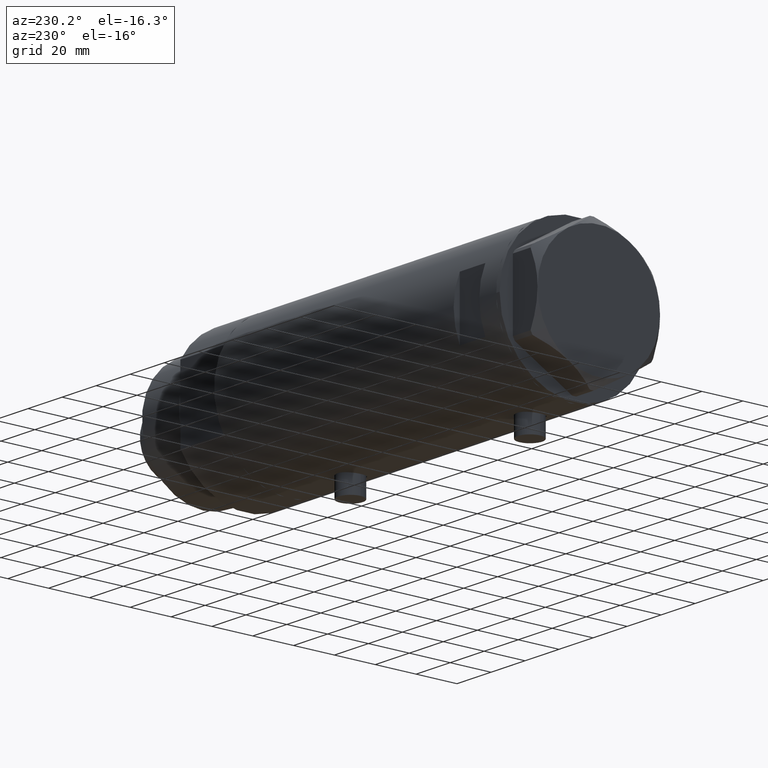
[diagram: clean part render]
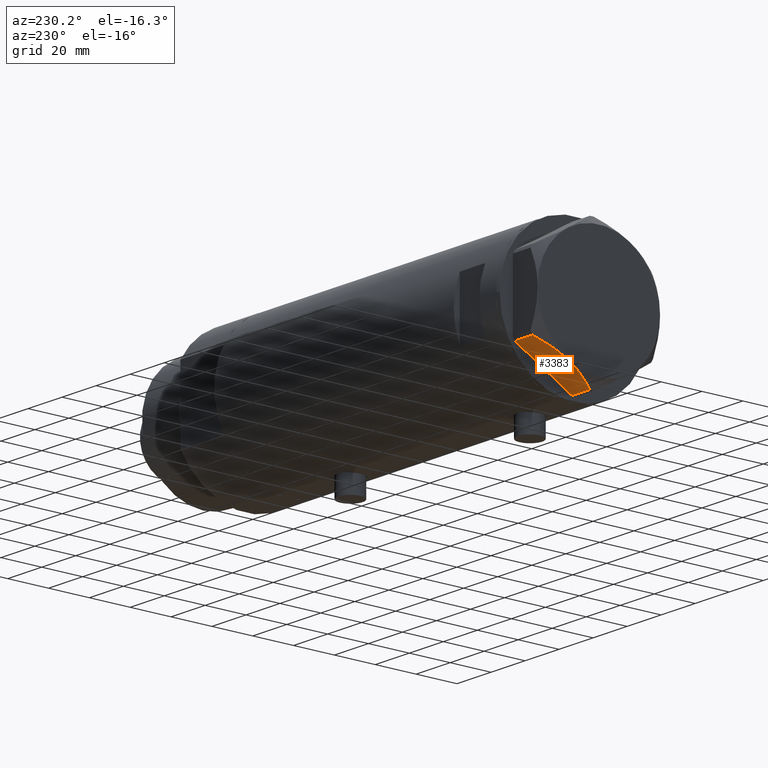
[diagram: same view with one face highlighted and labeled with its STEP entity id]
A machine part, auxiliary view. The second image highlights one B-rep face of the part: STEP entity #3383.
In plain terms, the highlighted planar face has unit normal (0, -0.5, 0.866).
Its self-contained STEP definition (entity closure, byte-faithful):
#293 = CARTESIAN_POINT ( 'NONE',  ( 7.227334865373877371, 30.46831242133036355, 13.19311392138218508 ) ) ;
#300 = FACE_OUTER_BOUND ( 'NONE', #2864, .T. ) ;
#363 = ORIENTED_EDGE ( 'NONE', *, *, #681, .T. ) ;
#487 = CARTESIAN_POINT ( 'NONE',  ( 29.99999999999999289, 17.32050807568878170, 0.000000000000000000 ) ) ;
#534 = VECTOR ( 'NONE', #1378, 1000.000000000000000 ) ;
#571 = CARTESIAN_POINT ( 'NONE',  ( 29.99999999999999289, 17.32050807568878170, 14.50000000000000000 ) ) ;
#581 = CARTESIAN_POINT ( 'NONE',  ( 3.192653970408704023, 32.79773652213274460, 11.56973717813891156 ) ) ;
#681 = EDGE_CURVE ( 'NONE', #1100, #3256, #3540, .T. ) ;
#777 = LINE ( 'NONE', #1759, #534 ) ;
#902 = EDGE_CURVE ( 'NONE', #3256, #2169, #777, .T. ) ;
#978 = B_SPLINE_CURVE_WITH_KNOTS ( 'NONE', 3,
 ( #3761, #2760, #4064, #293, #2345, #1358, #1329, #581, #2033, #2686 ),
 .UNSPECIFIED., .F., .F.,
 ( 4, 2, 2, 2, 4 ),
 ( 0.01795453117522811601, 0.02625795893839555362, 0.02833381587918740868, 0.03040967281997927762, 0.03456138670156298776 ),
 .UNSPECIFIED. ) ;
#982 = ORIENTED_EDGE ( 'NONE', *, *, #3927, .F. ) ;
#1100 = VERTEX_POINT ( 'NONE', #1982 ) ;
#1329 = CARTESIAN_POINT ( 'NONE',  ( 4.902385341345770975, 31.81062265488028018, 12.31959434659136576 ) ) ;
#1358 = CARTESIAN_POINT ( 'NONE',  ( 5.477433827014328571, 31.47861825688246640, 12.55468001512311105 ) ) ;
#1360 = CARTESIAN_POINT ( 'NONE',  ( 21.07077273125423034, 22.47579984295449407, 13.71922620632299505 ) ) ;
#1378 = DIRECTION ( 'NONE',  ( 0.000000000000000000, 0.000000000000000000, 1.000000000000000000 ) ) ;
#1468 = CARTESIAN_POINT ( 'NONE',  ( 14.99999999999999467, 25.98076211353316367, 14.50000000000000000 ) ) ;
#1478 = DIRECTION ( 'NONE',  ( -0.8660254037844387076, 0.4999999999999997780, 0.000000000000000000 ) ) ;
#1636 = DIRECTION ( 'NONE',  ( 0.8660254037844387076, -0.4999999999999997780, 0.000000000000000000 ) ) ;
#1683 = DIRECTION ( 'NONE',  ( -0.4999999999999998335, -0.8660254037844388186, 0.000000000000000000 ) ) ;
#1722 = CARTESIAN_POINT ( 'NONE',  ( 15.61187731150015878, 25.62749458302751293, 14.50000000000000355 ) ) ;
#1759 = CARTESIAN_POINT ( 'NONE',  ( 0.9699484522385712904, 34.08101615137753981, 14.50000000000000000 ) ) ;
#1786 = ORIENTED_EDGE ( 'NONE', *, *, #4155, .T. ) ;
#1866 = CARTESIAN_POINT ( 'NONE',  ( 0.9699484522385712904, 34.08101615137753981, 0.000000000000000000 ) ) ;
#1962 = ORIENTED_EDGE ( 'NONE', *, *, #902, .T. ) ;
#1982 = CARTESIAN_POINT ( 'NONE',  ( 29.03005154776139207, 17.88050807568879463, 0.000000000000000000 ) ) ;
#2012 = B_SPLINE_CURVE_WITH_KNOTS ( 'NONE', 3,
 ( #2349, #4472, #2713, #1360, #3763, #2742, #4121, #3446, #1722, #3108 ),
 .UNSPECIFIED., .F., .F.,
 ( 4, 2, 2, 2, 4 ),
 ( 0.001230196178133409956, 0.009592363676680764825, 0.01377344742595444649, 0.01586398930059127951, 0.01795453117522811601 ),
 .UNSPECIFIED. ) ;
#2033 = CARTESIAN_POINT ( 'NONE',  ( 2.073315687469442281, 33.44398678110199086, 11.01056656432865388 ) ) ;
#2169 = VERTEX_POINT ( 'NONE', #3201 ) ;
#2345 = CARTESIAN_POINT ( 'NONE',  ( 6.639151835535789026, 30.80790005194015535, 12.99122625442314671 ) ) ;
#2349 = CARTESIAN_POINT ( 'NONE',  ( 29.03005154776155194, 17.88050807568870226, 10.40518423703596085 ) ) ;
#2686 = CARTESIAN_POINT ( 'NONE',  ( 0.9699484522423541533, 34.08101615137535845, 10.40518423703812090 ) ) ;
#2713 = CARTESIAN_POINT ( 'NONE',  ( 24.56959650245796567, 20.45575299680294634, 12.63511531451932690 ) ) ;
#2742 = CARTESIAN_POINT ( 'NONE',  ( 18.07068105770096267, 24.20790357827400996, 14.29910535634586743 ) ) ;
#2760 = CARTESIAN_POINT ( 'NONE',  ( 12.56968319190193029, 27.38390617690464879, 14.50000000000000711 ) ) ;
#2864 = EDGE_LOOP ( 'NONE', ( #982, #1786, #363, #1962, #3254 ) ) ;
#2903 = CARTESIAN_POINT ( 'NONE',  ( 29.03005154776139207, 17.88050807568879463, 14.50000000000000000 ) ) ;
#2922 = LINE ( 'NONE', #2903, #3154 ) ;
#2999 = PLANE ( 'NONE',  #4096 ) ;
#3108 = CARTESIAN_POINT ( 'NONE',  ( 14.99999999999999467, 25.98076211353316367, 14.50000000000000000 ) ) ;
#3154 = VECTOR ( 'NONE', #4365, 1000.000000000000000 ) ;
#3201 = CARTESIAN_POINT ( 'NONE',  ( 0.9699484522423541533, 34.08101615137535845, 10.40518423703812090 ) ) ;
#3254 = ORIENTED_EDGE ( 'NONE', *, *, #4242, .F. ) ;
#3256 = VERTEX_POINT ( 'NONE', #1866 ) ;
#3383 = ADVANCED_FACE ( 'NONE', ( #300 ), #2999, .F. ) ;
#3446 = CARTESIAN_POINT ( 'NONE',  ( 16.22616138060133295, 25.27283751037305493, 14.47500996539161555 ) ) ;
#3540 = LINE ( 'NONE', #487, #4074 ) ;
#3707 = CARTESIAN_POINT ( 'NONE',  ( 29.03005154776155194, 17.88050807568870226, 10.40518423703596085 ) ) ;
#3761 = CARTESIAN_POINT ( 'NONE',  ( 14.99999999999999467, 25.98076211353316367, 14.50000000000000000 ) ) ;
#3763 = CARTESIAN_POINT ( 'NONE',  ( 19.88494945387372681, 23.16043523136144699, 14.00566141361760941 ) ) ;
#3839 = VERTEX_POINT ( 'NONE', #3707 ) ;
#3927 = EDGE_CURVE ( 'NONE', #3839, #4041, #2012, .T. ) ;
#4041 = VERTEX_POINT ( 'NONE', #1468 ) ;
#4064 = CARTESIAN_POINT ( 'NONE',  ( 10.17780078270602040, 28.76486012972386064, 14.10092492974158773 ) ) ;
#4074 = VECTOR ( 'NONE', #1478, 1000.000000000000227 ) ;
#4096 = AXIS2_PLACEMENT_3D ( 'NONE', #571, #1683, #1636 ) ;
#4121 = CARTESIAN_POINT ( 'NONE',  ( 17.45962150578836258, 24.56069897506165489, 14.37423503257921986 ) ) ;
#4155 = EDGE_CURVE ( 'NONE', #3839, #1100, #2922, .T. ) ;
#4242 = EDGE_CURVE ( 'NONE', #4041, #2169, #978, .T. ) ;
#4365 = DIRECTION ( 'NONE',  ( 0.000000000000000000, 0.000000000000000000, -1.000000000000000000 ) ) ;
#4472 = CARTESIAN_POINT ( 'NONE',  ( 26.82462797925471065, 19.15380996664327284, 11.61522964162834981 ) ) ;